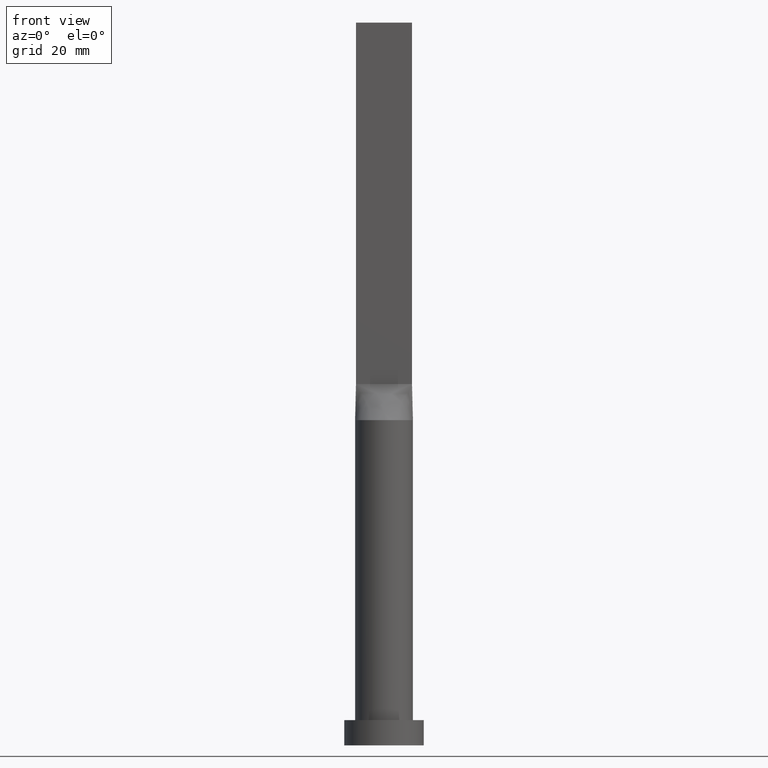
[diagram: clean part render]
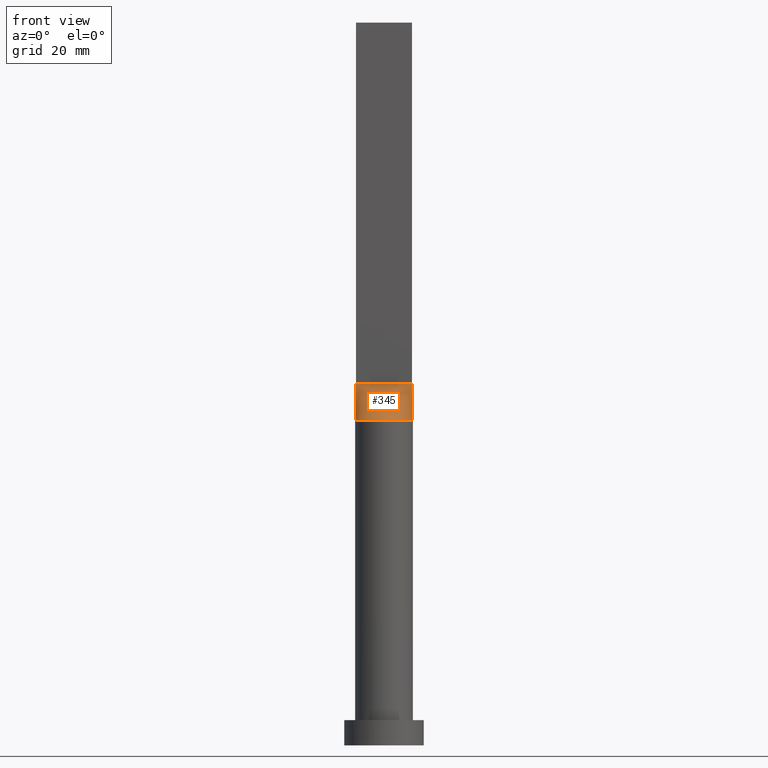
[diagram: same view with one face highlighted and labeled with its STEP entity id]
A machine part, front view. The second image highlights one B-rep face of the part: STEP entity #345.
In plain terms, the highlighted face is a freeform B-spline surface patch.
Its self-contained STEP definition (entity closure, byte-faithful):
#26 = CARTESIAN_POINT ( 'NONE',  ( -7.750000000000000000, -1.249999999999998890, 100.0000000000000000 ) ) ;
#30 = CARTESIAN_POINT ( 'NONE',  ( -1.614583333333333259, -1.249999999999999112, 100.0000000000000000 ) ) ;
#34 = CARTESIAN_POINT ( 'NONE',  ( 6.458333333333334814, -1.249999999999999778, 100.0000000000000284 ) ) ;
#36 = CARTESIAN_POINT ( 'NONE',  ( 4.520833333333333925, -1.249999999999999778, 100.0000000000000284 ) ) ;
#39 = CARTESIAN_POINT ( 'NONE',  ( 1.135368687448994107, -7.938897956688654389, 90.00000000000001421 ) ) ;
#51 = DIRECTION ( 'NONE',  ( 1.000000000000000000, -5.595882180570345426E-17, 0.000000000000000000 ) ) ;
#63 = VERTEX_POINT ( 'NONE', #105 ) ;
#64 = CARTESIAN_POINT ( 'NONE',  ( -1.291666666666666741, -1.249999999999999112, 100.0000000000000000 ) ) ;
#70 = CARTESIAN_POINT ( 'NONE',  ( -7.597511974649646227, -2.632154125590747906, 89.99999999999998579 ) ) ;
#88 = CARTESIAN_POINT ( 'NONE',  ( 7.750000000000000000, -1.249999999999999778, 100.0000000000000000 ) ) ;
#89 = CARTESIAN_POINT ( 'NONE',  ( 5.434261125067507692, -5.890653037160105576, 90.00000000000001421 ) ) ;
#91 = CARTESIAN_POINT ( 'NONE',  ( 6.100409024666552327, -5.197691498289451317, 90.00000000000001421 ) ) ;
#94 = CARTESIAN_POINT ( 'NONE',  ( 2.583333333333333481, -1.249999999999999556, 100.0000000000000284 ) ) ;
#100 = VECTOR ( 'NONE', #51, 1000.000000000000000 ) ;
#105 = CARTESIAN_POINT ( 'NONE',  ( 7.750000000000000000, -1.249999999999999778, 100.0000000000000000 ) ) ;
#110 = DIRECTION ( 'NONE',  ( -0.01479123618026851987, 0.002385683254881967950, 0.9998877576246579801 ) ) ;
#132 = CARTESIAN_POINT ( 'NONE',  ( -6.883287261198673512, -4.100742229440781372, 90.00000000000004263 ) ) ;
#140 = CARTESIAN_POINT ( 'NONE',  ( -6.389139692789920666, -4.834731051311459638, 90.00000000000004263 ) ) ;
#142 = CARTESIAN_POINT ( 'NONE',  ( 7.088837466865208548, -3.729743859143727747, 89.99999999999998579 ) ) ;
#146 = CARTESIAN_POINT ( 'NONE',  ( 6.389139692789917113, -4.834731051311460526, 90.00000000000002842 ) ) ;
#148 = CARTESIAN_POINT ( 'NONE',  ( 7.104166666666667851, -1.249999999999999778, 100.0000000000000000 ) ) ;
#152 = CARTESIAN_POINT ( 'NONE',  ( -1.135368687448996994, -7.938897956688654389, 90.00000000000001421 ) ) ;
#180 = CARTESIAN_POINT ( 'NONE',  ( -4.197916666666666963, -1.249999999999998890, 100.0000000000000142 ) ) ;
#188 = EDGE_LOOP ( 'NONE', ( #337, #223, #504, #548 ) ) ;
#189 = CARTESIAN_POINT ( 'NONE',  ( -2.762781956618986623, -7.527418670504289366, 90.00000000000004263 ) ) ;
#191 = CARTESIAN_POINT ( 'NONE',  ( -2.583333333333333481, -1.249999999999998890, 100.0000000000000000 ) ) ;
#197 = CARTESIAN_POINT ( 'NONE',  ( 7.897928965701177084, -1.273859510596963451, 90.00000000000001421 ) ) ;
#199 = DIRECTION ( 'NONE',  ( 0.000000000000000000, 0.000000000000000000, 1.000000000000000000 ) ) ;
#210 = CARTESIAN_POINT ( 'NONE',  ( -7.897940634034629426, -1.273861398824698732, 90.00000000000001421 ) ) ;
#223 = ORIENTED_EDGE ( 'NONE', *, *, #618, .T. ) ;
#236 = CARTESIAN_POINT ( 'NONE',  ( -7.897928965701177084, -1.273859510596962119, 90.00000000000001421 ) ) ;
#245 = CARTESIAN_POINT ( 'NONE',  ( -0.6458333333333330373, -1.249999999999999112, 100.0000000000000000 ) ) ;
#250 = CARTESIAN_POINT ( 'NONE',  ( -0.3229166666666662966, -1.249999999999999112, 100.0000000000000000 ) ) ;
#254 = CARTESIAN_POINT ( 'NONE',  ( 4.217034177653714799, -6.817775467282661594, 90.00000000000002842 ) ) ;
#264 = CARTESIAN_POINT ( 'NONE',  ( -7.823964482850588986, -1.261929755298480726, 95.00000000000000000 ) ) ;
#281 = CARTESIAN_POINT ( 'NONE',  ( -4.520833333333333037, -1.249999999999998890, 100.0000000000000000 ) ) ;
#289 = CARTESIAN_POINT ( 'NONE',  ( -4.217034177653715687, -6.817775467282659818, 89.99999999999998579 ) ) ;
#295 = CARTESIAN_POINT ( 'NONE',  ( 0.6458333333333335924, -1.249999999999999112, 100.0000000000000000 ) ) ;
#299 = VECTOR ( 'NONE', #110, 1000.000000000000227 ) ;
#308 = CIRCLE ( 'NONE', #404, 8.000000000000000000 ) ;
#311 = LINE ( 'NONE', #586, #100 ) ;
#324 = B_SPLINE_SURFACE_WITH_KNOTS ( 'NONE', 3, 1, ( 
 ( #236, #26 ),
 ( #423, #520 ),
 ( #70, #530 ),
 ( #329, #605 ),
 ( #132, #428 ),
 ( #140, #281 ),
 ( #470, #180 ),
 ( #612, #608 ),
 ( #563, #482 ),
 ( #289, #191 ),
 ( #515, #480 ),
 ( #189, #30 ),
 ( #466, #64 ),
 ( #152, #245 ),
 ( #346, #250 ),
 ( #625, #444 ),
 ( #39, #295 ),
 ( #438, #581 ),
 ( #486, #342 ),
 ( #533, #630 ),
 ( #254, #94 ),
 ( #617, #534 ),
 ( #89, #577 ),
 ( #91, #491 ),
 ( #146, #36 ),
 ( #343, #448 ),
 ( #142, #633 ),
 ( #348, #34 ),
 ( #620, #148 ),
 ( #197, #88 ) ),
 .UNSPECIFIED., .F., .F., .F.,
 ( 4, 2, 2, 2, 2, 2, 2, 2, 2, 2, 2, 2, 2, 2, 4 ),
 ( 2, 2 ),
 ( 0.000000000000000000, 0.1250000000000000000, 0.1875000000000000000, 0.2500000000000000000, 0.3125000000000000000, 0.3750000000000000000, 0.4375000000000000000, 0.5000000000000000000, 0.5625000000000000000, 0.6250000000000000000, 0.6875000000000000000, 0.7500000000000000000, 0.8125000000000000000, 0.8750000000000000000, 1.000000000000000000 ),
 ( 0.000000000000000000, 1.000000000000000000 ),
 .UNSPECIFIED. ) ;
#329 = CARTESIAN_POINT ( 'NONE',  ( -7.088837466865212988, -3.729743859143725526, 89.99999999999998579 ) ) ;
#337 = ORIENTED_EDGE ( 'NONE', *, *, #391, .T. ) ;
#342 = CARTESIAN_POINT ( 'NONE',  ( 1.614583333333333259, -1.249999999999999334, 100.0000000000000142 ) ) ;
#343 = CARTESIAN_POINT ( 'NONE',  ( 6.883287261198672624, -4.100742229440781372, 90.00000000000002842 ) ) ;
#345 = ADVANCED_FACE ( 'NONE', ( #381 ), #324, .T. ) ;
#346 = CARTESIAN_POINT ( 'NONE',  ( -0.5677556330368861426, -7.999999999999998224, 90.00000000000001421 ) ) ;
#348 = CARTESIAN_POINT ( 'NONE',  ( 7.597511974649644451, -2.632154125590752347, 90.00000000000001421 ) ) ;
#360 = LINE ( 'NONE', #638, #299 ) ;
#364 = VERTEX_POINT ( 'NONE', #393 ) ;
#381 = FACE_OUTER_BOUND ( 'NONE', #188, .T. ) ;
#391 = EDGE_CURVE ( 'NONE', #458, #364, #308, .T. ) ;
#393 = CARTESIAN_POINT ( 'NONE',  ( 7.897952327758385849, -1.273863293446191536, 90.00000000000001421 ) ) ;
#404 = AXIS2_PLACEMENT_3D ( 'NONE', #483, #199, #536 ) ;
#417 = VECTOR ( 'NONE', #451, 1000.000000000000227 ) ;
#423 = CARTESIAN_POINT ( 'NONE',  ( -7.793128424795161990, -1.923622864214270978, 89.99999999999998579 ) ) ;
#428 = CARTESIAN_POINT ( 'NONE',  ( -5.166666666666666963, -1.249999999999998890, 100.0000000000000000 ) ) ;
#438 = CARTESIAN_POINT ( 'NONE',  ( 2.232993174580876428, -7.702525839322460044, 90.00000000000001421 ) ) ;
#444 = CARTESIAN_POINT ( 'NONE',  ( 0.3229166666666669627, -1.249999999999999112, 100.0000000000000000 ) ) ;
#448 = CARTESIAN_POINT ( 'NONE',  ( 5.166666666666668739, -1.249999999999999778, 100.0000000000000284 ) ) ;
#451 = DIRECTION ( 'NONE',  ( -0.01479123618026851987, -0.002385683254881925015, -0.9998877576246579801 ) ) ;
#458 = VERTEX_POINT ( 'NONE', #210 ) ;
#466 = CARTESIAN_POINT ( 'NONE',  ( -2.232993174580879092, -7.702525839322459156, 90.00000000000002842 ) ) ;
#470 = CARTESIAN_POINT ( 'NONE',  ( -6.100409024666552327, -5.197691498289450429, 90.00000000000001421 ) ) ;
#480 = CARTESIAN_POINT ( 'NONE',  ( -2.260416666666666519, -1.249999999999999112, 100.0000000000000000 ) ) ;
#482 = CARTESIAN_POINT ( 'NONE',  ( -3.229166666666666519, -1.249999999999998890, 100.0000000000000000 ) ) ;
#483 = CARTESIAN_POINT ( 'NONE',  ( 0.000000000000000000, 0.000000000000000000, 90.00000000000001421 ) ) ;
#486 = CARTESIAN_POINT ( 'NONE',  ( 2.762781956618983514, -7.527418670504290255, 90.00000000000002842 ) ) ;
#491 = CARTESIAN_POINT ( 'NONE',  ( 4.197916666666667851, -1.249999999999999778, 100.0000000000000284 ) ) ;
#504 = ORIENTED_EDGE ( 'NONE', *, *, #589, .F. ) ;
#508 = VERTEX_POINT ( 'NONE', #584 ) ;
#515 = CARTESIAN_POINT ( 'NONE',  ( -3.754841939107310456, -7.084924699190306541, 90.00000000000002842 ) ) ;
#520 = CARTESIAN_POINT ( 'NONE',  ( -7.104166666666666963, -1.249999999999998890, 100.0000000000000000 ) ) ;
#530 = CARTESIAN_POINT ( 'NONE',  ( -6.458333333333333037, -1.249999999999998890, 100.0000000000000000 ) ) ;
#533 = CARTESIAN_POINT ( 'NONE',  ( 3.754841939107309123, -7.084924699190308317, 90.00000000000004263 ) ) ;
#534 = CARTESIAN_POINT ( 'NONE',  ( 3.229166666666666519, -1.249999999999999778, 100.0000000000000284 ) ) ;
#536 = DIRECTION ( 'NONE',  ( 1.000000000000000000, 0.000000000000000000, 0.000000000000000000 ) ) ;
#542 = LINE ( 'NONE', #264, #417 ) ;
#548 = ORIENTED_EDGE ( 'NONE', *, *, #628, .T. ) ;
#563 = CARTESIAN_POINT ( 'NONE',  ( -5.056714967162550423, -6.220536417275850383, 90.00000000000001421 ) ) ;
#577 = CARTESIAN_POINT ( 'NONE',  ( 3.552083333333333481, -1.249999999999999778, 100.0000000000000284 ) ) ;
#581 = CARTESIAN_POINT ( 'NONE',  ( 1.291666666666666963, -1.249999999999999112, 100.0000000000000000 ) ) ;
#584 = CARTESIAN_POINT ( 'NONE',  ( -7.750000000000000000, -1.249999999999998890, 100.0000000000000000 ) ) ;
#586 = CARTESIAN_POINT ( 'NONE',  ( -7.750000000000000000, -1.249999999999998890, 100.0000000000000000 ) ) ;
#589 = EDGE_CURVE ( 'NONE', #508, #63, #311, .T. ) ;
#605 = CARTESIAN_POINT ( 'NONE',  ( -5.489583333333332149, -1.249999999999998890, 100.0000000000000000 ) ) ;
#608 = CARTESIAN_POINT ( 'NONE',  ( -3.552083333333333481, -1.249999999999998890, 100.0000000000000142 ) ) ;
#612 = CARTESIAN_POINT ( 'NONE',  ( -5.434261125067508580, -5.890653037160103800, 90.00000000000001421 ) ) ;
#617 = CARTESIAN_POINT ( 'NONE',  ( 5.056714967162549534, -6.220536417275852159, 90.00000000000002842 ) ) ;
#618 = EDGE_CURVE ( 'NONE', #364, #63, #360, .T. ) ;
#620 = CARTESIAN_POINT ( 'NONE',  ( 7.793128424795160214, -1.923622864214274086, 90.00000000000001421 ) ) ;
#625 = CARTESIAN_POINT ( 'NONE',  ( 0.5677556330368840332, -7.999999999999998224, 90.00000000000002842 ) ) ;
#628 = EDGE_CURVE ( 'NONE', #508, #458, #542, .T. ) ;
#630 = CARTESIAN_POINT ( 'NONE',  ( 2.260416666666666519, -1.249999999999999334, 100.0000000000000142 ) ) ;
#633 = CARTESIAN_POINT ( 'NONE',  ( 5.489583333333335702, -1.249999999999999778, 100.0000000000000284 ) ) ;
#638 = CARTESIAN_POINT ( 'NONE',  ( 7.823964482850588986, -1.261929755298481393, 95.00000000000000000 ) ) ;